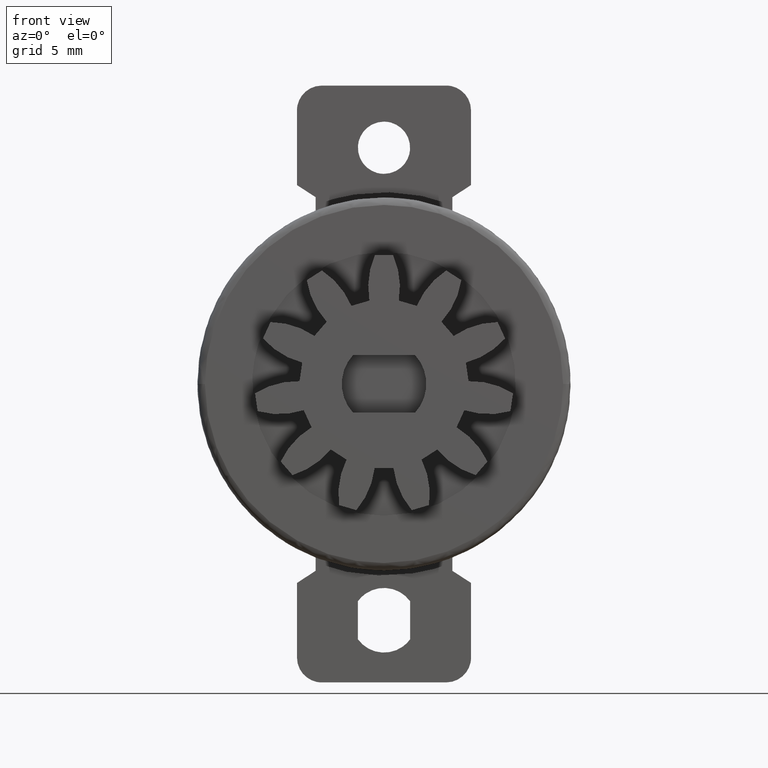
[diagram: clean part render]
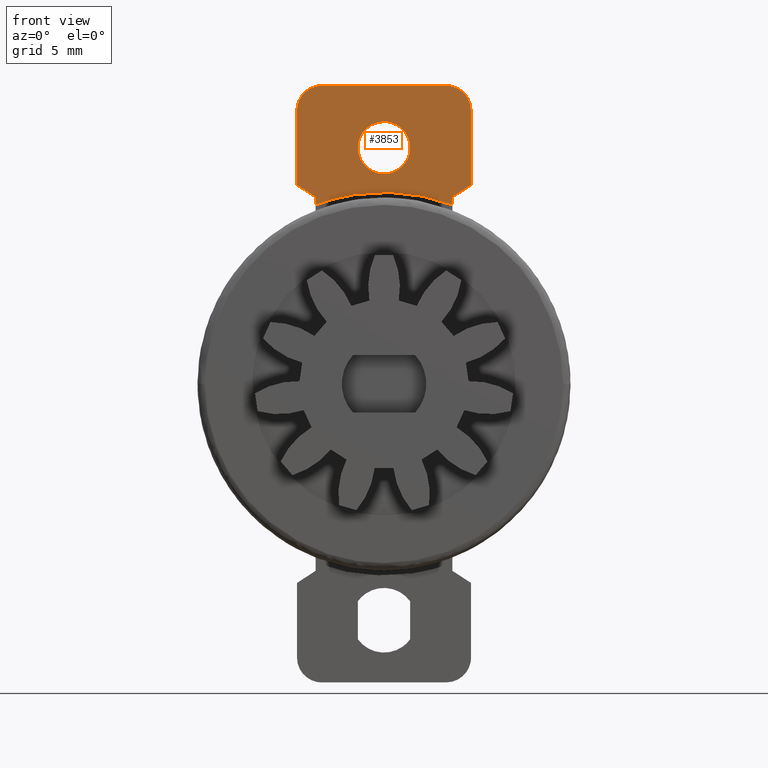
[diagram: same view with one face highlighted and labeled with its STEP entity id]
A machine part, front view. The second image highlights one B-rep face of the part: STEP entity #3853.
In plain terms, the highlighted face is a freeform B-spline surface patch.
Its self-contained STEP definition (entity closure, byte-faithful):
#2869=CARTESIAN_POINT('',(-1.046763200416690,-2.0,9.582382050553552));
#2870=VERTEX_POINT('',#2869);
#2876=CARTESIAN_POINT('',(0.0,-2.0,8.449999999999999));
#2877=VERTEX_POINT('',#2876);
#2878=CARTESIAN_POINT('',(-1.046763200416691,-2.000000000000000,9.582382050553552));
#2879=CARTESIAN_POINT('',(-1.050000000000000,-2.000000000000000,9.541254612377802));
#2880=CARTESIAN_POINT('',(-1.050000000000000,-2.0,9.500000000000000));
#2881=CARTESIAN_POINT('',(-1.050000000000000,-2.000000000000000,8.449999999999999));
#2882=CARTESIAN_POINT('',(0.0,-2.0,8.449999999999999));
#2890=(BOUNDED_CURVE()B_SPLINE_CURVE(2,(#2878,#2879,#2880,#2881,#2882),.UNSPECIFIED.,.F.,.U.)B_SPLINE_CURVE_WITH_KNOTS((3,2,3),(0.736331300626328,0.750000000000000,1.0),.UNSPECIFIED.)CURVE()GEOMETRIC_REPRESENTATION_ITEM()RATIONAL_B_SPLINE_CURVE((0.969723356158379,0.983986122573808,1.0,0.707106781186548,1.0))REPRESENTATION_ITEM(''));
#2891=EDGE_CURVE('',#2870,#2877,#2890,.T.);
#2893=CARTESIAN_POINT('',(1.046763200416690,-2.0,9.417617949446449));
#2894=VERTEX_POINT('',#2893);
#2895=CARTESIAN_POINT('',(0.0,-2.0,8.449999999999999));
#2896=CARTESIAN_POINT('',(0.970610016204549,-1.999999999999999,8.449999999999998));
#2897=CARTESIAN_POINT('',(1.046763200416690,-2.0,9.417617949446445));
#2905=(BOUNDED_CURVE()B_SPLINE_CURVE(2,(#2895,#2896,#2897),.UNSPECIFIED.,.F.,.U.)B_SPLINE_CURVE_WITH_KNOTS((3,3),(0.0,0.236331300626328),.UNSPECIFIED.)CURVE()GEOMETRIC_REPRESENTATION_ITEM()RATIONAL_B_SPLINE_CURVE((1.0,0.723120658612740,0.969723356158378))REPRESENTATION_ITEM(''));
#2906=EDGE_CURVE('',#2877,#2894,#2905,.T.);
#2952=CARTESIAN_POINT('',(0.0,-2.0,10.550000000000001));
#2953=VERTEX_POINT('',#2952);
#2954=CARTESIAN_POINT('',(1.046763200416690,-2.000000000000000,9.417617949446447));
#2955=CARTESIAN_POINT('',(1.050000000000000,-2.0,9.458745387622198));
#2956=CARTESIAN_POINT('',(1.050000000000000,-2.0,9.500000000000000));
#2957=CARTESIAN_POINT('',(1.050000000000000,-2.000000000000000,10.550000000000001));
#2958=CARTESIAN_POINT('',(0.0,-2.0,10.550000000000001));
#2966=(BOUNDED_CURVE()B_SPLINE_CURVE(2,(#2954,#2955,#2956,#2957,#2958),.UNSPECIFIED.,.F.,.U.)B_SPLINE_CURVE_WITH_KNOTS((3,2,3),(0.236331300626329,0.250000000000000,0.500000000000000),.UNSPECIFIED.)CURVE()GEOMETRIC_REPRESENTATION_ITEM()RATIONAL_B_SPLINE_CURVE((0.969723356158380,0.983986122573808,1.0,0.707106781186548,1.0))REPRESENTATION_ITEM(''));
#2967=EDGE_CURVE('',#2894,#2953,#2966,.T.);
#2969=CARTESIAN_POINT('',(0.0,-2.0,10.550000000000001));
#2970=CARTESIAN_POINT('',(-0.970610016204550,-2.0,10.550000000000001));
#2971=CARTESIAN_POINT('',(-1.046763200416691,-2.000000000000000,9.582382050553553));
#2979=(BOUNDED_CURVE()B_SPLINE_CURVE(2,(#2969,#2970,#2971),.UNSPECIFIED.,.F.,.U.)B_SPLINE_CURVE_WITH_KNOTS((3,3),(0.500000000000000,0.736331300626328),.UNSPECIFIED.)CURVE()GEOMETRIC_REPRESENTATION_ITEM()RATIONAL_B_SPLINE_CURVE((1.0,0.723120658612740,0.969723356158379))REPRESENTATION_ITEM(''));
#2980=EDGE_CURVE('',#2953,#2870,#2979,.T.);
#3185=CARTESIAN_POINT('',(-3.500000000000000,-2.0,8.0));
#3186=VERTEX_POINT('',#3185);
#3192=CARTESIAN_POINT('',(-3.500000000000000,-2.0,11.0));
#3193=VERTEX_POINT('',#3192);
#3194=CARTESIAN_POINT('',(-3.500000000000000,-2.0,8.0));
#3195=CARTESIAN_POINT('',(-3.500000000000000,-2.0,11.0));
#3196=QUASI_UNIFORM_CURVE('',1,(#3194,#3195),.UNSPECIFIED.,.F.,.U.);
#3197=EDGE_CURVE('',#3186,#3193,#3196,.T.);
#3237=CARTESIAN_POINT('',(-2.500000000000000,-2.0,12.0));
#3238=VERTEX_POINT('',#3237);
#3239=CARTESIAN_POINT('',(-2.500000000000000,-2.0,12.0));
#3240=CARTESIAN_POINT('',(-3.499999999999999,-2.000000000000000,12.0));
#3241=CARTESIAN_POINT('',(-3.500000000000000,-2.0,11.0));
#3249=(BOUNDED_CURVE()B_SPLINE_CURVE(2,(#3239,#3240,#3241),.UNSPECIFIED.,.F.,.U.)CURVE()GEOMETRIC_REPRESENTATION_ITEM()QUASI_UNIFORM_CURVE()RATIONAL_B_SPLINE_CURVE((1.0,0.707106781186548,1.0))REPRESENTATION_ITEM(''));
#3250=EDGE_CURVE('',#3238,#3193,#3249,.T.);
#3273=CARTESIAN_POINT('',(2.500000000000000,-2.0,12.0));
#3274=VERTEX_POINT('',#3273);
#3275=CARTESIAN_POINT('',(-2.500000000000000,-2.0,12.0));
#3276=CARTESIAN_POINT('',(2.500000000000000,-2.0,12.0));
#3277=QUASI_UNIFORM_CURVE('',1,(#3275,#3276),.UNSPECIFIED.,.F.,.U.);
#3278=EDGE_CURVE('',#3238,#3274,#3277,.T.);
#3318=CARTESIAN_POINT('',(3.500000000000000,-2.0,11.0));
#3319=VERTEX_POINT('',#3318);
#3320=CARTESIAN_POINT('',(3.500000000000000,-2.0,11.0));
#3321=CARTESIAN_POINT('',(3.499999999999999,-2.000000000000000,12.0));
#3322=CARTESIAN_POINT('',(2.500000000000000,-2.0,12.0));
#3330=(BOUNDED_CURVE()B_SPLINE_CURVE(2,(#3320,#3321,#3322),.UNSPECIFIED.,.F.,.U.)CURVE()GEOMETRIC_REPRESENTATION_ITEM()QUASI_UNIFORM_CURVE()RATIONAL_B_SPLINE_CURVE((1.0,0.707106781186548,1.0))REPRESENTATION_ITEM(''));
#3331=EDGE_CURVE('',#3319,#3274,#3330,.T.);
#3354=CARTESIAN_POINT('',(3.500000000000000,-2.0,8.0));
#3355=VERTEX_POINT('',#3354);
#3356=CARTESIAN_POINT('',(3.500000000000000,-2.0,11.0));
#3357=CARTESIAN_POINT('',(3.500000000000000,-2.0,8.0));
#3358=QUASI_UNIFORM_CURVE('',1,(#3356,#3357),.UNSPECIFIED.,.F.,.U.);
#3359=EDGE_CURVE('',#3319,#3355,#3358,.T.);
#3794=CARTESIAN_POINT('',(-3.849649986432643,-2.0,6.960240009290710));
#3795=CARTESIAN_POINT('',(3.849650174187274,-2.0,6.960240009290710));
#3796=CARTESIAN_POINT('',(-3.849649986432643,-2.0,12.239760119443300));
#3797=CARTESIAN_POINT('',(3.849650174187274,-2.0,12.239760119443300));
#3798=B_SPLINE_SURFACE_WITH_KNOTS('',1,1,((#3794,#3796),(#3795,#3797)),.UNSPECIFIED.,.F.,.F.,.U.,(2,2),(2,2),(0.0,7.699300160619917),(0.0,5.279520110152594),.UNSPECIFIED.);
#3799=CARTESIAN_POINT('',(2.750000000000000,-2.0,7.512489600658401));
#3800=VERTEX_POINT('',#3799);
#3801=CARTESIAN_POINT('',(2.750000000000000,-2.0,7.199999999987980));
#3802=VERTEX_POINT('',#3801);
#3803=CARTESIAN_POINT('',(2.750000000000000,-2.0,7.512489600658401));
#3804=CARTESIAN_POINT('',(2.750000000000000,-2.0,7.199999999987980));
#3805=QUASI_UNIFORM_CURVE('',1,(#3803,#3804),.UNSPECIFIED.,.F.,.U.);
#3806=EDGE_CURVE('',#3800,#3802,#3805,.T.);
#3807=ORIENTED_EDGE('',*,*,#3806,.F.);
#3808=CARTESIAN_POINT('',(3.500000000000000,-2.0,8.0));
#3809=CARTESIAN_POINT('',(2.750000000000000,-2.0,7.512489600658401));
#3810=QUASI_UNIFORM_CURVE('',1,(#3808,#3809),.UNSPECIFIED.,.F.,.U.);
#3811=EDGE_CURVE('',#3355,#3800,#3810,.T.);
#3812=ORIENTED_EDGE('',*,*,#3811,.F.);
#3813=ORIENTED_EDGE('',*,*,#3359,.F.);
#3814=ORIENTED_EDGE('',*,*,#3331,.T.);
#3815=ORIENTED_EDGE('',*,*,#3278,.F.);
#3816=ORIENTED_EDGE('',*,*,#3250,.T.);
#3817=ORIENTED_EDGE('',*,*,#3197,.F.);
#3818=CARTESIAN_POINT('',(-2.750000000000000,-2.0,7.512489600658401));
#3819=VERTEX_POINT('',#3818);
#3820=CARTESIAN_POINT('',(-2.750000000000000,-2.0,7.512489600658401));
#3821=CARTESIAN_POINT('',(-3.500000000000000,-2.0,8.0));
#3822=QUASI_UNIFORM_CURVE('',1,(#3820,#3821),.UNSPECIFIED.,.F.,.U.);
#3823=EDGE_CURVE('',#3819,#3186,#3822,.T.);
#3824=ORIENTED_EDGE('',*,*,#3823,.F.);
#3825=CARTESIAN_POINT('',(-2.750000000000000,-2.0,7.199999999987980));
#3826=VERTEX_POINT('',#3825);
#3827=CARTESIAN_POINT('',(-2.750000000000000,-2.0,7.199999999987980));
#3828=CARTESIAN_POINT('',(-2.750000000000000,-2.0,7.512489600658401));
#3829=QUASI_UNIFORM_CURVE('',1,(#3827,#3828),.UNSPECIFIED.,.F.,.U.);
#3830=EDGE_CURVE('',#3826,#3819,#3829,.T.);
#3831=ORIENTED_EDGE('',*,*,#3830,.F.);
#3832=CARTESIAN_POINT('',(2.749999999999998,-2.0,7.199999999987979));
#3833=CARTESIAN_POINT('',(2.168404E-015,-2.0,8.250347222211953));
#3834=CARTESIAN_POINT('',(-2.749999999999996,-2.0,7.199999999987979));
#3842=(BOUNDED_CURVE()B_SPLINE_CURVE(2,(#3832,#3833,#3834),.UNSPECIFIED.,.F.,.U.)CURVE()GEOMETRIC_REPRESENTATION_ITEM()QUASI_UNIFORM_CURVE()RATIONAL_B_SPLINE_CURVE((1.0,0.934179074549912,1.0))REPRESENTATION_ITEM(''));
#3843=EDGE_CURVE('',#3802,#3826,#3842,.T.);
#3844=ORIENTED_EDGE('',*,*,#3843,.F.);
#3845=EDGE_LOOP('',(#3807,#3812,#3813,#3814,#3815,#3816,#3817,#3824,#3831,#3844));
#3846=FACE_OUTER_BOUND('',#3845,.T.);
#3847=ORIENTED_EDGE('',*,*,#2980,.F.);
#3848=ORIENTED_EDGE('',*,*,#2967,.F.);
#3849=ORIENTED_EDGE('',*,*,#2906,.F.);
#3850=ORIENTED_EDGE('',*,*,#2891,.F.);
#3851=EDGE_LOOP('',(#3847,#3848,#3849,#3850));
#3852=FACE_BOUND('',#3851,.T.);
#3853=ADVANCED_FACE('',(#3846,#3852),#3798,.T.);